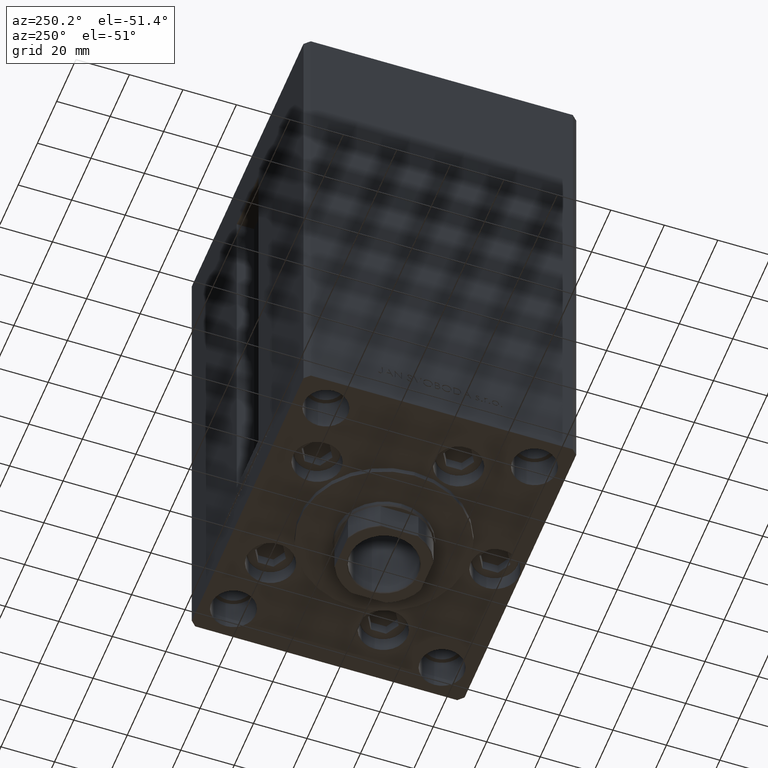
[diagram: clean part render]
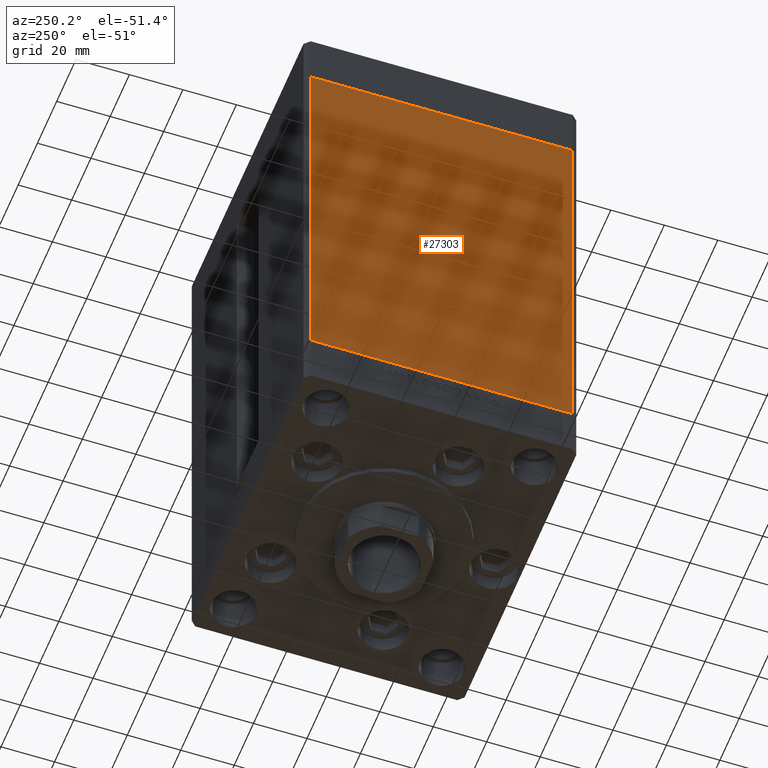
[diagram: same view with one face highlighted and labeled with its STEP entity id]
A machine part, auxiliary view. The second image highlights one B-rep face of the part: STEP entity #27303.
In plain terms, the highlighted planar face has unit normal (1, 0, 0).
Its self-contained STEP definition (entity closure, byte-faithful):
#2296 = CARTESIAN_POINT ( 'NONE',  ( -60.00000000000001421, 49.00000000000000000, 148.5000000000000000 ) ) ;
#3208 = EDGE_LOOP ( 'NONE', ( #11307, #47815, #38054, #30616 ) ) ;
#4251 = CARTESIAN_POINT ( 'NONE',  ( -60.00000000000001421, 49.00000000000000000, 0.000000000000000000 ) ) ;
#5838 = LINE ( 'NONE', #13785, #16800 ) ;
#9417 = CARTESIAN_POINT ( 'NONE',  ( -60.00000000000001421, 49.00000000000000000, 148.5000000000000000 ) ) ;
#9489 = VERTEX_POINT ( 'NONE', #13476 ) ;
#10197 = VECTOR ( 'NONE', #33217, 1000.000000000000000 ) ;
#11307 = ORIENTED_EDGE ( 'NONE', *, *, #22548, .T. ) ;
#11998 = CARTESIAN_POINT ( 'NONE',  ( -60.00000000000001421, 49.00000000000000000, 148.5000000000000000 ) ) ;
#13476 = CARTESIAN_POINT ( 'NONE',  ( -59.99999999999998579, -49.00000000000000000, 148.5000000000000000 ) ) ;
#13728 = PLANE ( 'NONE',  #14479 ) ;
#13785 = CARTESIAN_POINT ( 'NONE',  ( -60.00000000000001421, 49.00000000000000000, 0.000000000000000000 ) ) ;
#13852 = EDGE_CURVE ( 'NONE', #20498, #31144, #30879, .T. ) ;
#14479 = AXIS2_PLACEMENT_3D ( 'NONE', #2296, #21909, #28893 ) ;
#15706 = VECTOR ( 'NONE', #29533, 1000.000000000000000 ) ;
#16800 = VECTOR ( 'NONE', #17263, 1000.000000000000000 ) ;
#17263 = DIRECTION ( 'NONE',  ( 2.832201593431521726E-16, -1.000000000000000000, 0.000000000000000000 ) ) ;
#18332 = CARTESIAN_POINT ( 'NONE',  ( -59.99999999999998579, -49.00000000000000000, 0.000000000000000000 ) ) ;
#20498 = VERTEX_POINT ( 'NONE', #48227 ) ;
#21909 = DIRECTION ( 'NONE',  ( 1.000000000000000000, 2.832201593431521726E-16, -0.000000000000000000 ) ) ;
#22548 = EDGE_CURVE ( 'NONE', #31144, #47489, #5838, .T. ) ;
#24883 = EDGE_CURVE ( 'NONE', #9489, #47489, #41641, .T. ) ;
#27303 = ADVANCED_FACE ( 'NONE', ( #36584 ), #13728, .F. ) ;
#28893 = DIRECTION ( 'NONE',  ( -2.832201593431521726E-16, 1.000000000000000000, 0.000000000000000000 ) ) ;
#29533 = DIRECTION ( 'NONE',  ( 2.832201593431521726E-16, -1.000000000000000000, 0.000000000000000000 ) ) ;
#30616 = ORIENTED_EDGE ( 'NONE', *, *, #13852, .T. ) ;
#30879 = LINE ( 'NONE', #11998, #10197 ) ;
#31144 = VERTEX_POINT ( 'NONE', #4251 ) ;
#33217 = DIRECTION ( 'NONE',  ( -0.000000000000000000, -0.000000000000000000, -1.000000000000000000 ) ) ;
#36242 = LINE ( 'NONE', #9417, #15706 ) ;
#36584 = FACE_OUTER_BOUND ( 'NONE', #3208, .T. ) ;
#37194 = CARTESIAN_POINT ( 'NONE',  ( -59.99999999999998579, -49.00000000000000000, 148.5000000000000000 ) ) ;
#38054 = ORIENTED_EDGE ( 'NONE', *, *, #43124, .F. ) ;
#40685 = VECTOR ( 'NONE', #48859, 1000.000000000000000 ) ;
#41641 = LINE ( 'NONE', #37194, #40685 ) ;
#43124 = EDGE_CURVE ( 'NONE', #20498, #9489, #36242, .T. ) ;
#47489 = VERTEX_POINT ( 'NONE', #18332 ) ;
#47815 = ORIENTED_EDGE ( 'NONE', *, *, #24883, .F. ) ;
#48227 = CARTESIAN_POINT ( 'NONE',  ( -60.00000000000001421, 49.00000000000000000, 148.5000000000000000 ) ) ;
#48859 = DIRECTION ( 'NONE',  ( -0.000000000000000000, -0.000000000000000000, -1.000000000000000000 ) ) ;